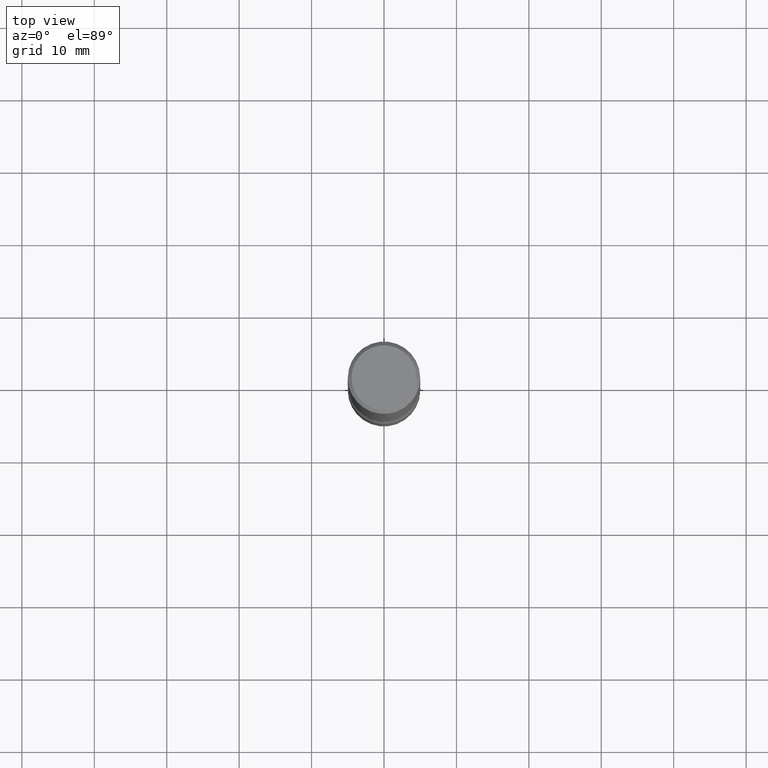
[diagram: clean part render]
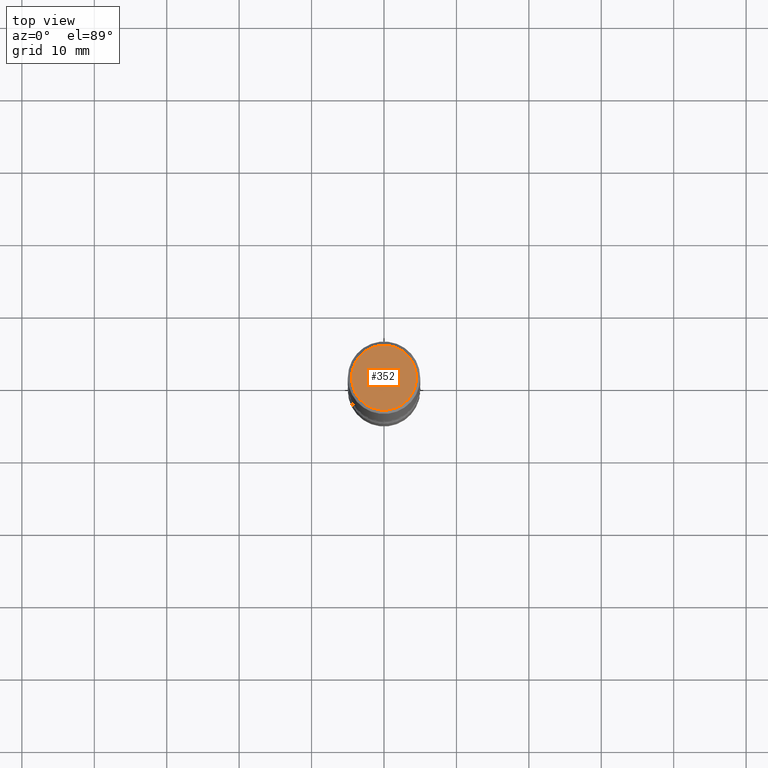
[diagram: same view with one face highlighted and labeled with its STEP entity id]
A machine part, top view. The second image highlights one B-rep face of the part: STEP entity #352.
In plain terms, the highlighted planar face has unit normal (0, -0, -1).
Its self-contained STEP definition (entity closure, byte-faithful):
#10 = CARTESIAN_POINT ( 'NONE',  ( 0.1768499999999998962, -1.316798864272041549E-15, 4.268512490109333727E-18 ) ) ;
#38 = CIRCLE ( 'NONE', #80, 0.1768499999999998962 ) ;
#40 = ORIENTED_EDGE ( 'NONE', *, *, #101, .T. ) ;
#69 = DIRECTION ( 'NONE',  ( 2.438088387897960049E-29, -3.491481338843145188E-15, -1.000000000000000000 ) ) ;
#72 = CARTESIAN_POINT ( 'NONE',  ( 1.234936949548815209E-15, 0.1768499999999998962, -6.153342185293597578E-16 ) ) ;
#75 = DIRECTION ( 'NONE',  ( -2.445468806185136597E-29, 3.491481338843145583E-15, 1.000000000000000000 ) ) ;
#80 = AXIS2_PLACEMENT_3D ( 'NONE', #422, #75, #245 ) ;
#101 = EDGE_CURVE ( 'NONE', #210, #468, #538, .T. ) ;
#108 = ORIENTED_EDGE ( 'NONE', *, *, #476, .T. ) ;
#109 = AXIS2_PLACEMENT_3D ( 'NONE', #404, #230, #308 ) ;
#191 = PLANE ( 'NONE',  #539 ) ;
#210 = VERTEX_POINT ( 'NONE', #10 ) ;
#230 = DIRECTION ( 'NONE',  ( -2.445468806185136597E-29, 3.491481338843145583E-15, 1.000000000000000000 ) ) ;
#244 = DIRECTION ( 'NONE',  ( -1.000000000000000000, 6.982962677686265922E-15, -4.876176775795935793E-29 ) ) ;
#245 = DIRECTION ( 'NONE',  ( 1.000000000000000000, -6.982962677686266711E-15, 4.875932113059880811E-29 ) ) ;
#308 = DIRECTION ( 'NONE',  ( 1.000000000000000000, -6.982962677686266711E-15, 4.875932113059880811E-29 ) ) ;
#352 = ADVANCED_FACE ( 'NONE', ( #506 ), #191, .F. ) ;
#404 = CARTESIAN_POINT ( 'NONE',  ( -1.043851414335219820E-46, 1.490343170380447200E-32, 4.268512490100411279E-18 ) ) ;
#422 = CARTESIAN_POINT ( 'NONE',  ( -1.043851414335219820E-46, 1.490343170380447200E-32, 4.268512490100411279E-18 ) ) ;
#430 = CARTESIAN_POINT ( 'NONE',  ( -0.1768499999999998962, 1.269851762937246858E-15, 4.268512490091652920E-18 ) ) ;
#468 = VERTEX_POINT ( 'NONE', #430 ) ;
#476 = EDGE_CURVE ( 'NONE', #468, #210, #38, .T. ) ;
#506 = FACE_OUTER_BOUND ( 'NONE', #552, .T. ) ;
#538 = CIRCLE ( 'NONE', #109, 0.1768499999999998962 ) ;
#539 = AXIS2_PLACEMENT_3D ( 'NONE', #72, #69, #244 ) ;
#552 = EDGE_LOOP ( 'NONE', ( #108, #40 ) ) ;